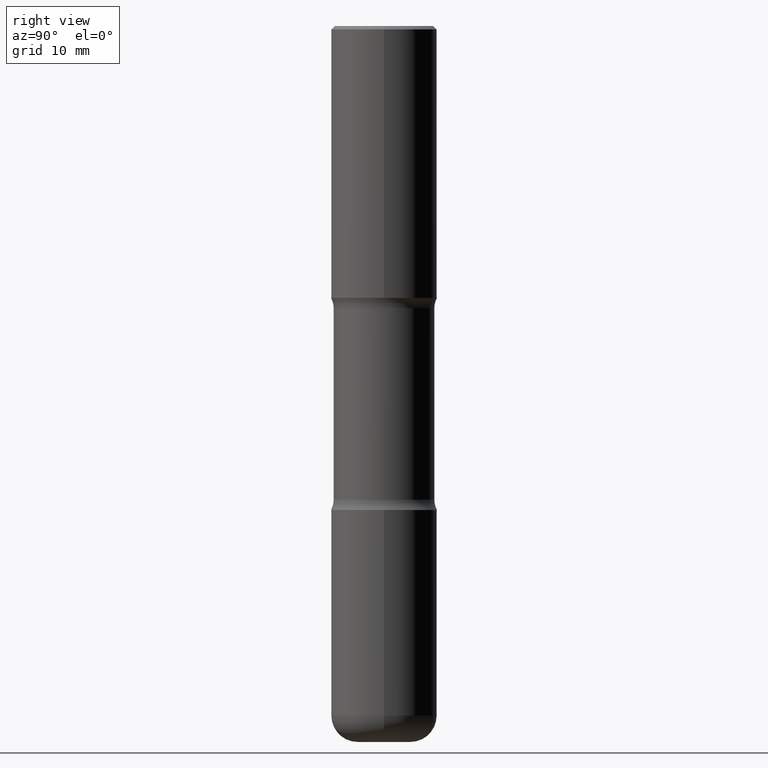
[diagram: clean part render]
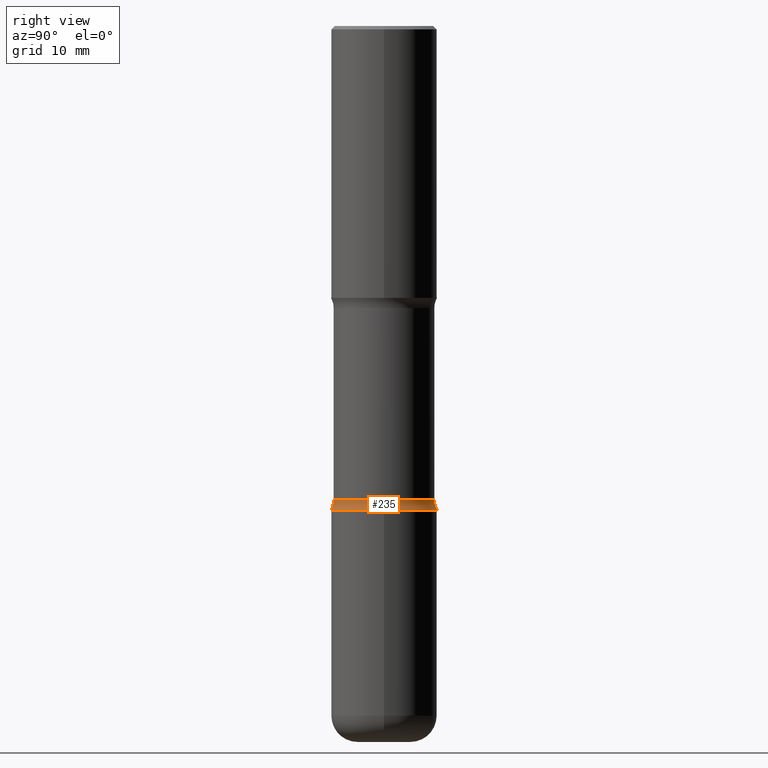
[diagram: same view with one face highlighted and labeled with its STEP entity id]
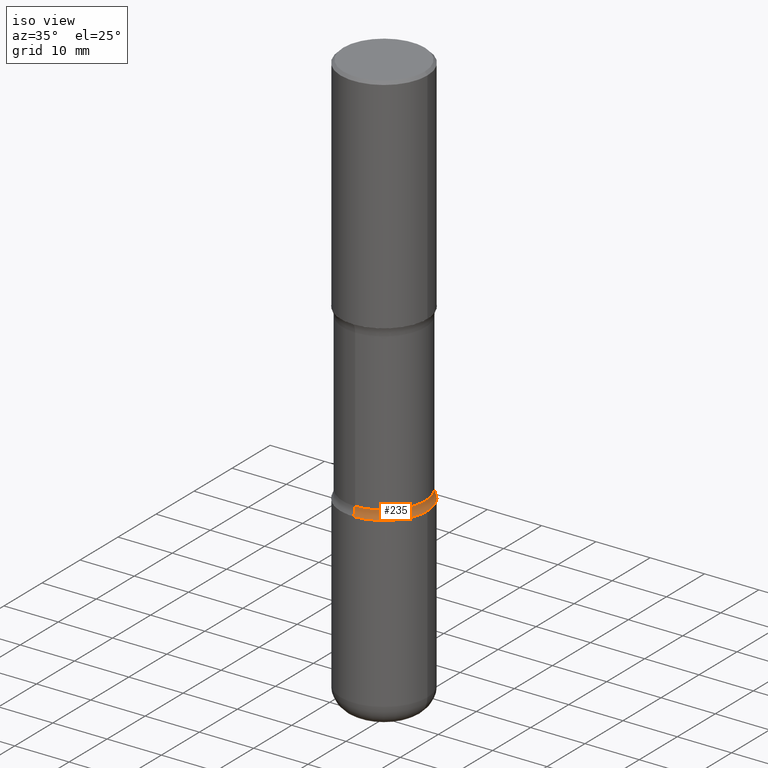
[diagram: same view with one face highlighted and labeled with its STEP entity id]
A machine part, right view. The second image highlights one B-rep face of the part: STEP entity #235.
A second angle (iso view) of the same face is appended — the face is thin or edge-on in the first view.
In plain terms, the highlighted toroidal blend (fillet) surface has major radius 10.7696 mm and minor (blend) radius 3.175 mm.
Its self-contained STEP definition (entity closure, byte-faithful):
#3 = EDGE_CURVE ( 'NONE', #374, #387, #512, .T. ) ;
#13 = CIRCLE ( 'NONE', #350, 0.2990000000000000435 ) ;
#16 = ORIENTED_EDGE ( 'NONE', *, *, #435, .T. ) ;
#38 = AXIS2_PLACEMENT_3D ( 'NONE', #356, #222, #314 ) ;
#45 = ORIENTED_EDGE ( 'NONE', *, *, #347, .T. ) ;
#71 = TOROIDAL_SURFACE ( 'NONE', #229, 0.4240000000000000990, 0.1249999999999999445 ) ;
#72 = DIRECTION ( 'NONE',  ( 6.982962677686265922E-15, 1.000000000000000000, -3.441919510220789364E-15 ) ) ;
#75 = CARTESIAN_POINT ( 'NONE',  ( 2.087905840628262630E-15, 0.2989999999999902180, -2.812900920628869095 ) ) ;
#103 = ORIENTED_EDGE ( 'NONE', *, *, #311, .F. ) ;
#109 = ORIENTED_EDGE ( 'NONE', *, *, #3, .F. ) ;
#116 = FACE_OUTER_BOUND ( 'NONE', #133, .T. ) ;
#121 = DIRECTION ( 'NONE',  ( 6.982962677686264344E-15, 1.000000000000000000, -3.469564049740290403E-15 ) ) ;
#133 = EDGE_LOOP ( 'NONE', ( #109, #103, #16, #45 ) ) ;
#166 = CARTESIAN_POINT ( 'NONE',  ( -2.160713844398073943E-15, -0.3149500000000101663, -2.873999999999999666 ) ) ;
#184 = DIRECTION ( 'NONE',  ( 2.480077646135916176E-29, -3.441919510220789364E-15, -1.000000000000000000 ) ) ;
#204 = DIRECTION ( 'NONE',  ( 2.480077646135916176E-29, -3.441919510220789364E-15, -1.000000000000000000 ) ) ;
#211 = CARTESIAN_POINT ( 'NONE',  ( 7.028277348976083234E-29, -1.003451736783520325E-14, -2.874000000000000554 ) ) ;
#222 = DIRECTION ( 'NONE',  ( -1.000000000000000000, 6.982962677686265922E-15, -4.883557194083112340E-29 ) ) ;
#229 = AXIS2_PLACEMENT_3D ( 'NONE', #455, #204, #72 ) ;
#235 = ADVANCED_FACE ( 'NONE', ( #116 ), #71, .F. ) ;
#275 = DIRECTION ( 'NONE',  ( 6.860497997771529985E-15, 1.000000000000000000, 0.000000000000000000 ) ) ;
#279 = VERTEX_POINT ( 'NONE', #75 ) ;
#311 = EDGE_CURVE ( 'NONE', #541, #374, #315, .T. ) ;
#314 = DIRECTION ( 'NONE',  ( -6.982962677686265133E-15, -1.000000000000000000, 0.000000000000000000 ) ) ;
#315 = CIRCLE ( 'NONE', #367, 0.3149500000000002298 ) ;
#326 = CARTESIAN_POINT ( 'NONE',  ( -2.908851151055060947E-15, -0.4240000000000099245, -2.812900920628865986 ) ) ;
#344 = CARTESIAN_POINT ( 'NONE',  ( -2.106001372865846525E-15, -0.2990000000000098690, -2.812900920628866874 ) ) ;
#345 = DIRECTION ( 'NONE',  ( 2.480077646135916176E-29, -3.441919510220789364E-15, -1.000000000000000000 ) ) ;
#347 = EDGE_CURVE ( 'NONE', #279, #387, #13, .T. ) ;
#350 = AXIS2_PLACEMENT_3D ( 'NONE', #437, #184, #482 ) ;
#356 = CARTESIAN_POINT ( 'NONE',  ( 2.960776175339046363E-15, 0.4239999999999902736, -2.812900920628869539 ) ) ;
#365 = DIRECTION ( 'NONE',  ( 1.000000000000000000, -6.860497997771530774E-15, 4.841405836971965838E-29 ) ) ;
#367 = AXIS2_PLACEMENT_3D ( 'NONE', #211, #345, #121 ) ;
#374 = VERTEX_POINT ( 'NONE', #166 ) ;
#387 = VERTEX_POINT ( 'NONE', #344 ) ;
#415 = AXIS2_PLACEMENT_3D ( 'NONE', #326, #365, #275 ) ;
#435 = EDGE_CURVE ( 'NONE', #541, #279, #495, .T. ) ;
#437 = CARTESIAN_POINT ( 'NONE',  ( 6.876746888028252201E-29, -9.824219254491173135E-15, -2.812900920628867762 ) ) ;
#447 = CARTESIAN_POINT ( 'NONE',  ( 2.199284095337360474E-15, 0.3149499999999901267, -2.874000000000001442 ) ) ;
#455 = CARTESIAN_POINT ( 'NONE',  ( 6.878861456287348184E-29, -9.821191072390396407E-15, -2.812900920628867762 ) ) ;
#482 = DIRECTION ( 'NONE',  ( 6.982962677686266711E-15, 1.000000000000000000, -3.654646145370251312E-15 ) ) ;
#495 = CIRCLE ( 'NONE', #38, 0.1249999999999999584 ) ;
#512 = CIRCLE ( 'NONE', #415, 0.1249999999999999584 ) ;
#541 = VERTEX_POINT ( 'NONE', #447 ) ;